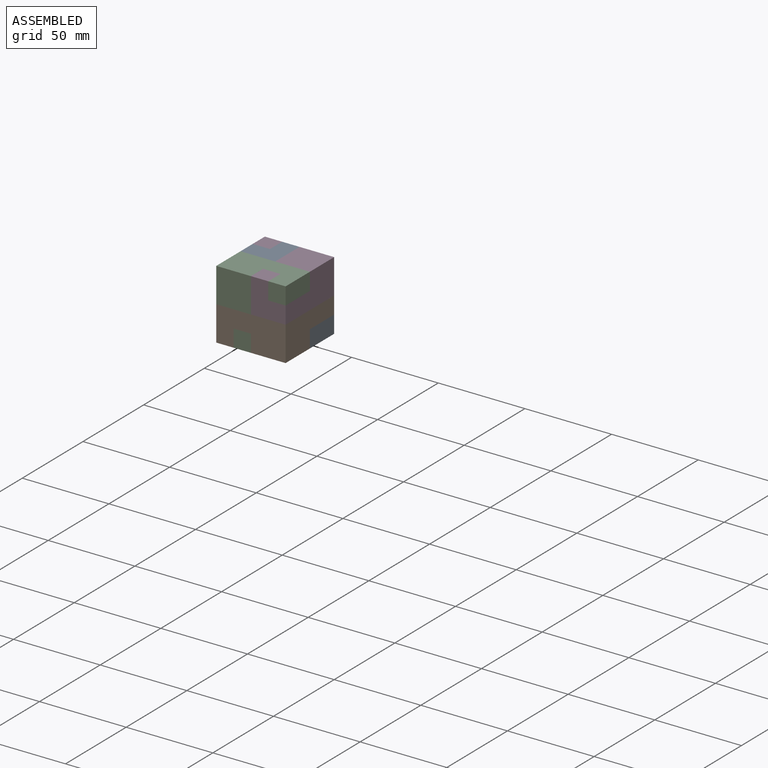
[diagram: assembled view]
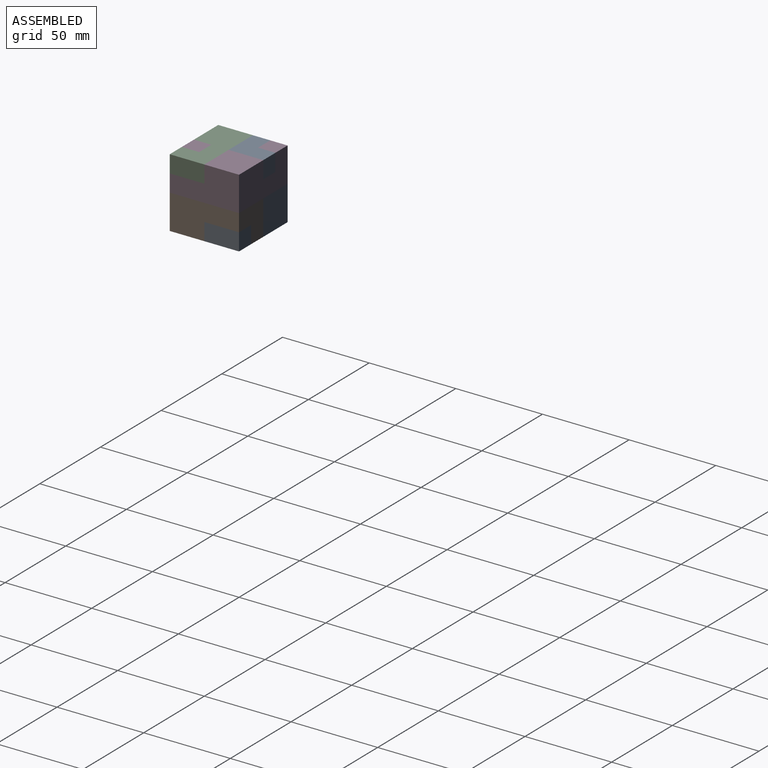
[diagram: assembled view, second angle]
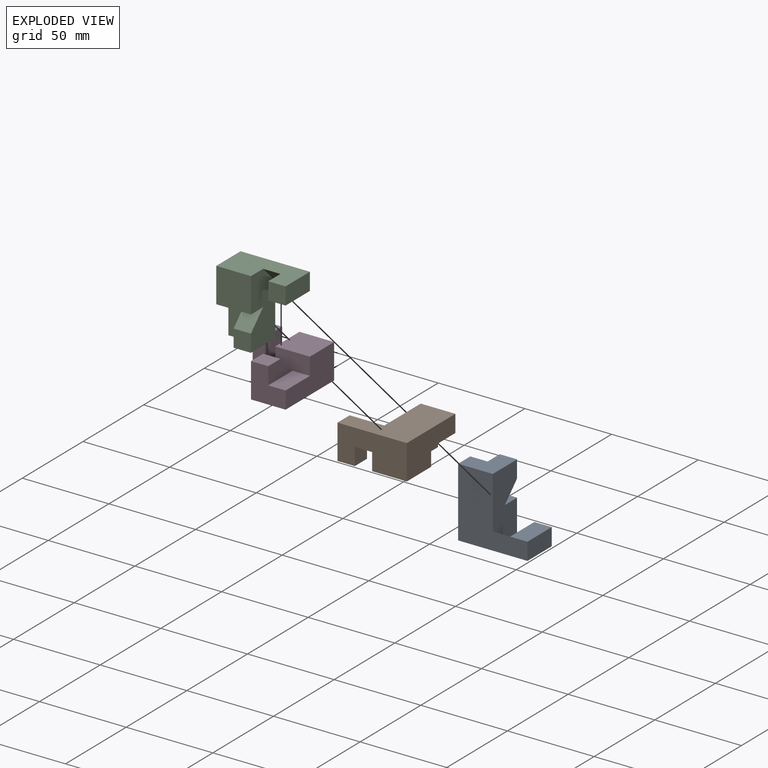
[diagram: exploded view]
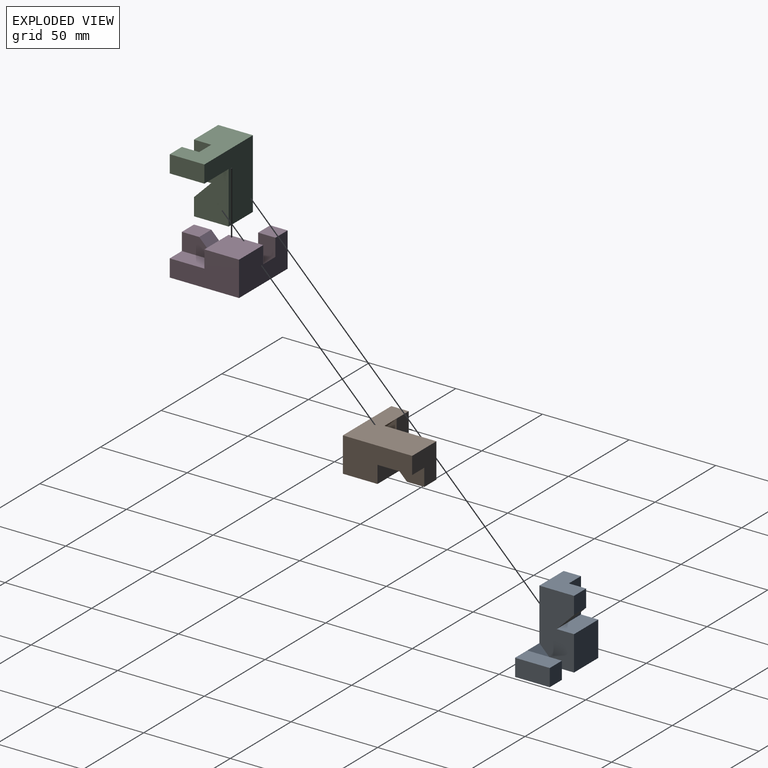
[diagram: exploded view, second angle]
ASSEMBLY  parts=4 mates=3
PART A: 16 faces, bbox 40x40x20 mm
  f0: plane 10x10mm, normal (0,0,-1), area 100mm2, adj f6,f8,f10,f15
  f1: plane 20x20mm, normal (0,0,-1), area 400mm2, adj f2,f4,f8,f11
  f2: plane 40x20mm, normal (1,0,0), area 700mm2, adj f1,f5,f7,f8,f9,f11,f13,f14
  f3: plane 20x10mm, normal (-1,0,0), area 150mm2, adj f5,f7,f12,f13
  f4: plane 40x20mm, normal (-1,0,0), area 600mm2, adj f1,f7,f8,f9,f11,f12
  f5: plane 10x10mm, normal (0,0,-1), area 100mm2, adj f2,f3,f7,f13
  f6: plane 20x10mm, normal (1,0,0), area 200mm2, adj f0,f8,f9,f10
  f7: plane 20x20mm, normal (0,1,0), area 300mm2, adj f2,f3,f4,f5,f9,f12
  f8: plane 40x20mm, normal (0,-1,0), area 700mm2, adj f0,f1,f2,f4,f6,f9,f14,f15
  f9: plane 40x40mm, normal (0,0,1), area 1000mm2, adj f2,f4,f6,f7,f8,f10,f14
  f10: plane 20x10mm, normal (0,1,0), area 200mm2, adj f0,f6,f9,f15
  f11: plane 20x10mm, normal (0,1,0), area 200mm2, adj f1,f2,f4,f12,f13
  f12: plane 20x10mm, normal (0,0,-1), area 200mm2, adj f3,f4,f7,f11
  f13: plane 10x10mm, normal (0,-0.71,-0.71), area 141.4mm2, adj f2,f3,f5,f11
  f14: plane 10x10mm, normal (0,0.71,-0.71), area 141.4mm2, adj f2,f8,f9,f15
  f15: plane 20x10mm, normal (-1,0,0), area 150mm2, adj f0,f8,f10,f14
PART B: 16 faces, bbox 40x40x20 mm
  f0: plane 10x10mm, normal (0,0,1), area 100mm2, adj f6,f8,f10,f15
  f1: plane 20x20mm, normal (0,0,1), area 400mm2, adj f2,f4,f8,f11
  f2: plane 40x20mm, normal (1,0,0), area 700mm2, adj f1,f5,f7,f8,f9,f11,f13,f14
  f3: plane 20x10mm, normal (-1,0,0), area 150mm2, adj f5,f7,f12,f13
  f4: plane 40x20mm, normal (-1,0,0), area 600mm2, adj f1,f7,f8,f9,f11,f12
  f5: plane 10x10mm, normal (0,0,1), area 100mm2, adj f2,f3,f7,f13
  f6: plane 20x10mm, normal (1,0,0), area 200mm2, adj f0,f8,f9,f10
  f7: plane 20x20mm, normal (0,1,0), area 300mm2, adj f2,f3,f4,f5,f9,f12
  f8: plane 40x20mm, normal (0,-1,0), area 700mm2, adj f0,f1,f2,f4,f6,f9,f14,f15
  f9: plane 40x40mm, normal (0,0,-1), area 1000mm2, adj f2,f4,f6,f7,f8,f10,f14
  f10: plane 20x10mm, normal (0,1,0), area 200mm2, adj f0,f6,f9,f15
  f11: plane 20x10mm, normal (0,1,0), area 200mm2, adj f1,f2,f4,f12,f13
  f12: plane 20x10mm, normal (0,0,1), area 200mm2, adj f3,f4,f7,f11
  f13: plane 10x10mm, normal (0,-0.71,0.71), area 141.4mm2, adj f2,f3,f5,f11
  f14: plane 10x10mm, normal (0,0.71,0.71), area 141.4mm2, adj f2,f8,f9,f15
  f15: plane 20x10mm, normal (-1,0,0), area 150mm2, adj f0,f8,f10,f14
PART C: same geometry as A
PART D: same geometry as B
PLACE A rot(axis=(1,0,0),90deg) t=(-20,-20,0)mm
PLACE B rot(axis=(0,1,0),180deg) t=(-20,-20,0)mm
PLACE C rot(axis=(-1,0,0),90deg) t=(-20,-20,0)mm
PLACE D rot(axis=(0,0,-1),180deg) t=(-20,-20,0)mm
MATE fastened D.f14 <-> A.f13  axis (0,-0.71,0.71) through (-25,-5,5)mm
MATE fastened C.f14 <-> D.f13  axis (0,-0.71,-0.71) through (-15,-25,15)mm
MATE fastened C.f13 <-> B.f14  axis (0,-0.71,0.71) through (-25,-35,-5)mm
